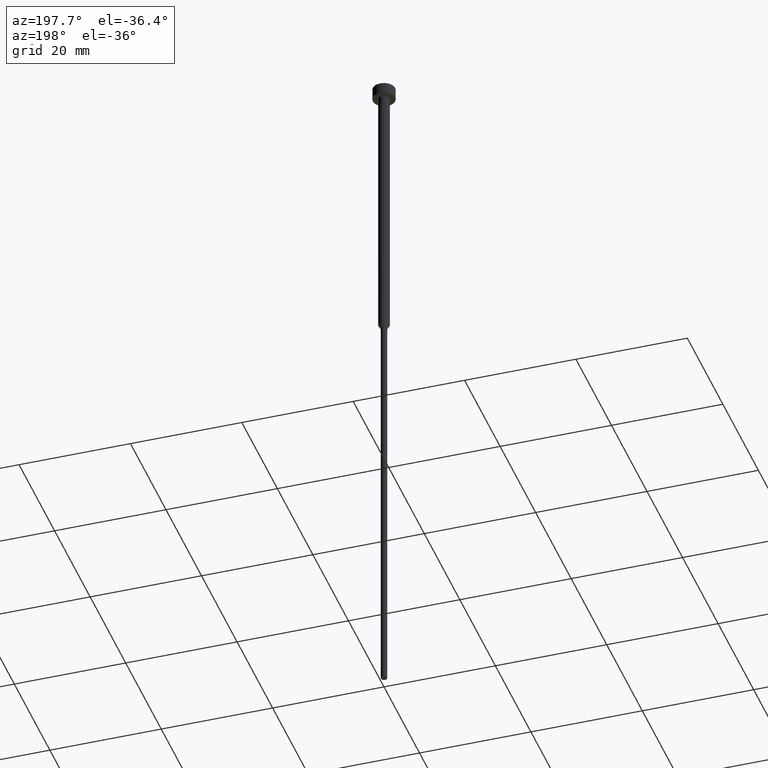
[diagram: clean part render]
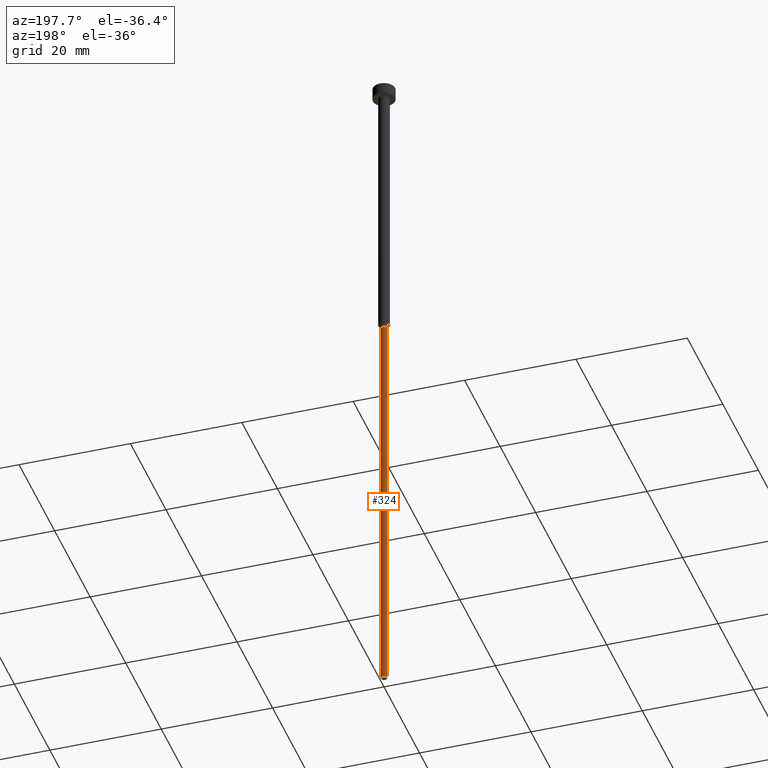
[diagram: same view with one face highlighted and labeled with its STEP entity id]
A machine part, auxiliary view. The second image highlights one B-rep face of the part: STEP entity #324.
In plain terms, the highlighted cylindrical surface (edge-blend (fillet) strip) has radius 0.55 mm, axis along (-0, -0, 1).
Its self-contained STEP definition (entity closure, byte-faithful):
#3 = LINE ( 'NONE', #186, #301 ) ;
#9 = EDGE_CURVE ( 'NONE', #268, #194, #107, .T. ) ;
#13 = CARTESIAN_POINT ( 'NONE',  ( 0.000000000000000000, 0.000000000000000000, -125.0000000000000000 ) ) ;
#15 = DIRECTION ( 'NONE',  ( 1.000000000000000000, 0.000000000000000000, 0.000000000000000000 ) ) ;
#31 = CIRCLE ( 'NONE', #171, 0.5500000000000000444 ) ;
#37 = DIRECTION ( 'NONE',  ( -0.000000000000000000, -0.000000000000000000, 1.000000000000000000 ) ) ;
#45 = CARTESIAN_POINT ( 'NONE',  ( -0.5499999999999999334, 6.735557395310441284E-17, -125.0000000000000000 ) ) ;
#51 = CARTESIAN_POINT ( 'NONE',  ( 0.5499999999999999334, 0.000000000000000000, 0.000000000000000000 ) ) ;
#79 = DIRECTION ( 'NONE',  ( 1.000000000000000000, 0.000000000000000000, 0.000000000000000000 ) ) ;
#107 = CIRCLE ( 'NONE', #271, 0.5499999999999999334 ) ;
#108 = CARTESIAN_POINT ( 'NONE',  ( 0.000000000000000000, 0.000000000000000000, 0.000000000000000000 ) ) ;
#114 = ORIENTED_EDGE ( 'NONE', *, *, #126, .F. ) ;
#126 = EDGE_CURVE ( 'NONE', #333, #245, #31, .T. ) ;
#142 = ORIENTED_EDGE ( 'NONE', *, *, #259, .T. ) ;
#150 = CARTESIAN_POINT ( 'NONE',  ( 0.5500000000000000444, 0.000000000000000000, -50.77942286340599765 ) ) ;
#157 = DIRECTION ( 'NONE',  ( 1.000000000000000000, 0.000000000000000000, 0.000000000000000000 ) ) ;
#165 = CYLINDRICAL_SURFACE ( 'NONE', #345, 0.5499999999999999334 ) ;
#171 = AXIS2_PLACEMENT_3D ( 'NONE', #338, #199, #15 ) ;
#186 = CARTESIAN_POINT ( 'NONE',  ( -0.5499999999999999334, 6.735557395310441284E-17, 0.000000000000000000 ) ) ;
#189 = CARTESIAN_POINT ( 'NONE',  ( -0.5500000000000000444, 6.735557395310442516E-17, -50.77942286340599765 ) ) ;
#194 = VERTEX_POINT ( 'NONE', #45 ) ;
#199 = DIRECTION ( 'NONE',  ( -0.000000000000000000, -0.000000000000000000, 1.000000000000000000 ) ) ;
#210 = DIRECTION ( 'NONE',  ( -0.000000000000000000, -0.000000000000000000, 1.000000000000000000 ) ) ;
#213 = DIRECTION ( 'NONE',  ( -0.000000000000000000, -0.000000000000000000, 1.000000000000000000 ) ) ;
#239 = DIRECTION ( 'NONE',  ( -0.000000000000000000, -0.000000000000000000, 1.000000000000000000 ) ) ;
#245 = VERTEX_POINT ( 'NONE', #189 ) ;
#250 = VECTOR ( 'NONE', #239, 1000.000000000000000 ) ;
#259 = EDGE_CURVE ( 'NONE', #194, #245, #3, .T. ) ;
#267 = CARTESIAN_POINT ( 'NONE',  ( 0.5499999999999999334, 0.000000000000000000, -125.0000000000000000 ) ) ;
#268 = VERTEX_POINT ( 'NONE', #267 ) ;
#271 = AXIS2_PLACEMENT_3D ( 'NONE', #13, #37, #157 ) ;
#273 = ORIENTED_EDGE ( 'NONE', *, *, #316, .F. ) ;
#293 = EDGE_LOOP ( 'NONE', ( #304, #142, #114, #273 ) ) ;
#301 = VECTOR ( 'NONE', #213, 1000.000000000000000 ) ;
#303 = FACE_OUTER_BOUND ( 'NONE', #293, .T. ) ;
#304 = ORIENTED_EDGE ( 'NONE', *, *, #9, .T. ) ;
#316 = EDGE_CURVE ( 'NONE', #268, #333, #353, .T. ) ;
#324 = ADVANCED_FACE ( 'NONE', ( #303 ), #165, .T. ) ;
#333 = VERTEX_POINT ( 'NONE', #150 ) ;
#338 = CARTESIAN_POINT ( 'NONE',  ( 0.000000000000000000, 0.000000000000000000, -50.77942286340599765 ) ) ;
#345 = AXIS2_PLACEMENT_3D ( 'NONE', #108, #210, #79 ) ;
#353 = LINE ( 'NONE', #51, #250 ) ;